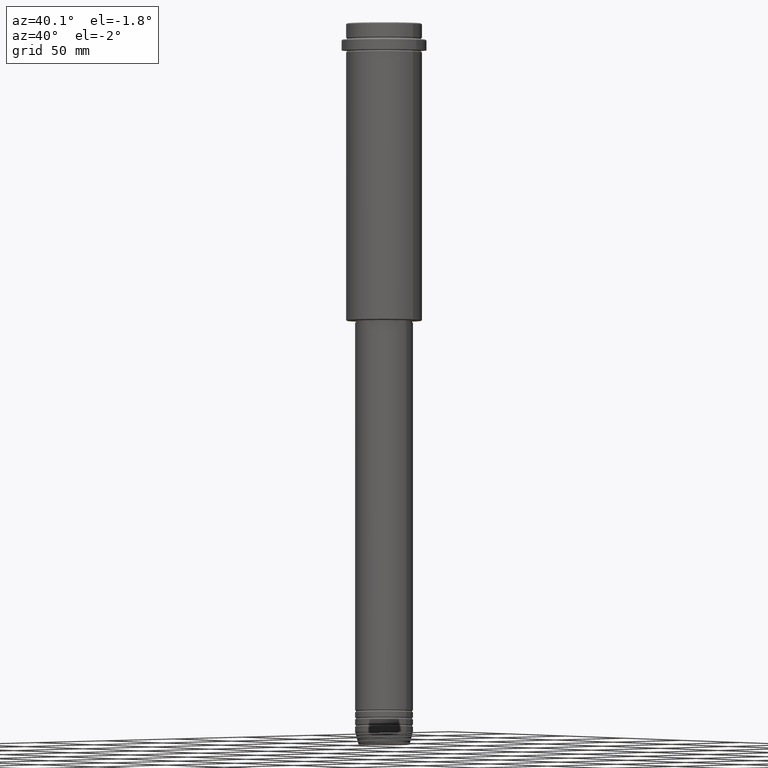
[diagram: clean part render]
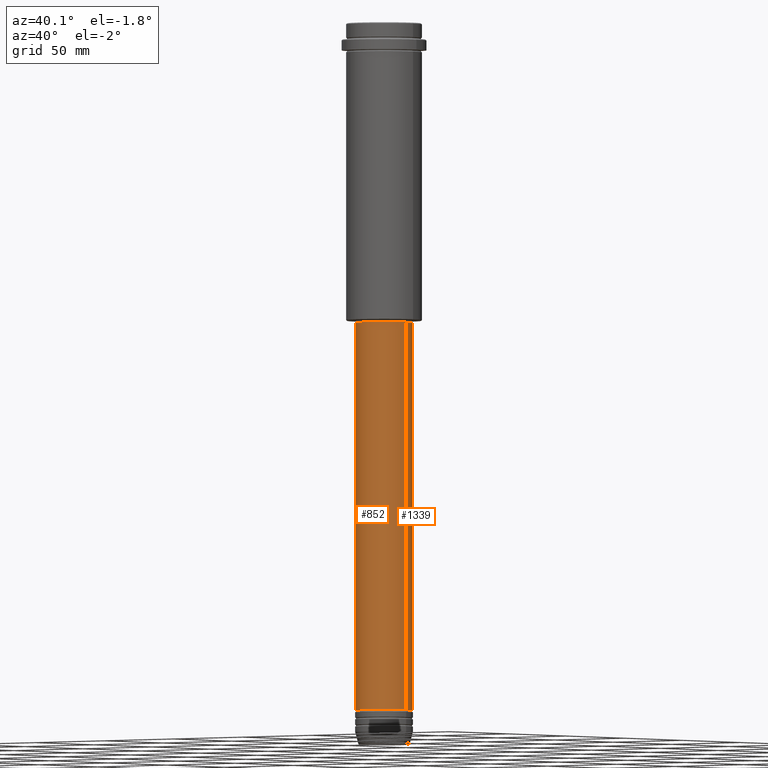
[diagram: same view with one multi-face feature highlighted, each face labeled with its STEP entity id]
A machine part, auxiliary view. The highlighted faces form ONE feature: a constant-radius fillet chain: 2 tangent blend faces with common blend radius 16 mm. The faces share edges in the B-rep.
Their STEP definitions:
[1] entity #1339 (Cylinder):
#47 = CARTESIAN_POINT ( 'NONE',  ( 16.00000000000000000, 0.000000000000000000, 0.000000000000000000 ) ) ;
#77 = CIRCLE ( 'NONE', #877, 16.00000000000000355 ) ;
#89 = DIRECTION ( 'NONE',  ( -0.000000000000000000, -0.000000000000000000, 1.000000000000000000 ) ) ;
#251 = VERTEX_POINT ( 'NONE', #1068 ) ;
#310 = LINE ( 'NONE', #403, #466 ) ;
#337 = ORIENTED_EDGE ( 'NONE', *, *, #456, .T. ) ;
#361 = CARTESIAN_POINT ( 'NONE',  ( 0.000000000000000000, 0.000000000000000000, -380.9999999999998295 ) ) ;
#403 = CARTESIAN_POINT ( 'NONE',  ( -16.00000000000000000, 1.959434878635765131E-15, 0.000000000000000000 ) ) ;
#431 = CARTESIAN_POINT ( 'NONE',  ( -16.00000000000000000, 1.959434878635765131E-15, -380.9999999999998295 ) ) ;
#456 = EDGE_CURVE ( 'NONE', #1061, #1329, #1062, .T. ) ;
#466 = VECTOR ( 'NONE', #1063, 1000.000000000000000 ) ;
#513 = ORIENTED_EDGE ( 'NONE', *, *, #1052, .T. ) ;
#548 = DIRECTION ( 'NONE',  ( -0.000000000000000000, -0.000000000000000000, 1.000000000000000000 ) ) ;
#627 = DIRECTION ( 'NONE',  ( 1.000000000000000000, 0.000000000000000000, 0.000000000000000000 ) ) ;
#698 = LINE ( 'NONE', #47, #1182 ) ;
#734 = CARTESIAN_POINT ( 'NONE',  ( 0.000000000000000000, 0.000000000000000000, -165.9999999999998863 ) ) ;
#761 = CYLINDRICAL_SURFACE ( 'NONE', #1047, 16.00000000000000000 ) ;
#762 = CARTESIAN_POINT ( 'NONE',  ( 16.00000000000000355, 0.000000000000000000, -165.9999999999998863 ) ) ;
#825 = DIRECTION ( 'NONE',  ( -0.000000000000000000, -0.000000000000000000, 1.000000000000000000 ) ) ;
#849 = VERTEX_POINT ( 'NONE', #762 ) ;
#861 = EDGE_LOOP ( 'NONE', ( #337, #513, #1020, #1272 ) ) ;
#873 = AXIS2_PLACEMENT_3D ( 'NONE', #361, #548, #1320 ) ;
#877 = AXIS2_PLACEMENT_3D ( 'NONE', #734, #89, #627 ) ;
#917 = DIRECTION ( 'NONE',  ( -0.000000000000000000, -0.000000000000000000, 1.000000000000000000 ) ) ;
#1005 = EDGE_CURVE ( 'NONE', #1061, #849, #698, .T. ) ;
#1020 = ORIENTED_EDGE ( 'NONE', *, *, #1038, .F. ) ;
#1038 = EDGE_CURVE ( 'NONE', #849, #251, #77, .T. ) ;
#1047 = AXIS2_PLACEMENT_3D ( 'NONE', #1203, #917, #1151 ) ;
#1052 = EDGE_CURVE ( 'NONE', #1329, #251, #310, .T. ) ;
#1061 = VERTEX_POINT ( 'NONE', #1405 ) ;
#1062 = CIRCLE ( 'NONE', #873, 16.00000000000000000 ) ;
#1063 = DIRECTION ( 'NONE',  ( -0.000000000000000000, -0.000000000000000000, 1.000000000000000000 ) ) ;
#1068 = CARTESIAN_POINT ( 'NONE',  ( -16.00000000000000355, 1.959434878635765526E-15, -165.9999999999998863 ) ) ;
#1151 = DIRECTION ( 'NONE',  ( 1.000000000000000000, 0.000000000000000000, 0.000000000000000000 ) ) ;
#1182 = VECTOR ( 'NONE', #825, 1000.000000000000000 ) ;
#1203 = CARTESIAN_POINT ( 'NONE',  ( 0.000000000000000000, 0.000000000000000000, 0.000000000000000000 ) ) ;
#1272 = ORIENTED_EDGE ( 'NONE', *, *, #1005, .F. ) ;
#1308 = FACE_OUTER_BOUND ( 'NONE', #861, .T. ) ;
#1320 = DIRECTION ( 'NONE',  ( 1.000000000000000000, 0.000000000000000000, 0.000000000000000000 ) ) ;
#1329 = VERTEX_POINT ( 'NONE', #431 ) ;
#1339 = ADVANCED_FACE ( 'NONE', ( #1308 ), #761, .T. ) ;
#1405 = CARTESIAN_POINT ( 'NONE',  ( 16.00000000000000000, 0.000000000000000000, -380.9999999999998295 ) ) ;
[2] entity #852 (Cylinder):
#47 = CARTESIAN_POINT ( 'NONE',  ( 16.00000000000000000, 0.000000000000000000, 0.000000000000000000 ) ) ;
#59 = CIRCLE ( 'NONE', #768, 16.00000000000000355 ) ;
#251 = VERTEX_POINT ( 'NONE', #1068 ) ;
#310 = LINE ( 'NONE', #403, #466 ) ;
#403 = CARTESIAN_POINT ( 'NONE',  ( -16.00000000000000000, 1.959434878635765131E-15, 0.000000000000000000 ) ) ;
#431 = CARTESIAN_POINT ( 'NONE',  ( -16.00000000000000000, 1.959434878635765131E-15, -380.9999999999998295 ) ) ;
#466 = VECTOR ( 'NONE', #1063, 1000.000000000000000 ) ;
#483 = DIRECTION ( 'NONE',  ( -0.000000000000000000, -0.000000000000000000, 1.000000000000000000 ) ) ;
#520 = ORIENTED_EDGE ( 'NONE', *, *, #1005, .T. ) ;
#589 = AXIS2_PLACEMENT_3D ( 'NONE', #600, #483, #988 ) ;
#600 = CARTESIAN_POINT ( 'NONE',  ( 0.000000000000000000, 0.000000000000000000, -380.9999999999998295 ) ) ;
#602 = CARTESIAN_POINT ( 'NONE',  ( 0.000000000000000000, 0.000000000000000000, 0.000000000000000000 ) ) ;
#660 = CYLINDRICAL_SURFACE ( 'NONE', #789, 16.00000000000000000 ) ;
#698 = LINE ( 'NONE', #47, #1182 ) ;
#762 = CARTESIAN_POINT ( 'NONE',  ( 16.00000000000000355, 0.000000000000000000, -165.9999999999998863 ) ) ;
#768 = AXIS2_PLACEMENT_3D ( 'NONE', #1343, #1145, #1127 ) ;
#788 = ORIENTED_EDGE ( 'NONE', *, *, #1371, .T. ) ;
#789 = AXIS2_PLACEMENT_3D ( 'NONE', #602, #800, #1256 ) ;
#800 = DIRECTION ( 'NONE',  ( -0.000000000000000000, -0.000000000000000000, 1.000000000000000000 ) ) ;
#825 = DIRECTION ( 'NONE',  ( -0.000000000000000000, -0.000000000000000000, 1.000000000000000000 ) ) ;
#849 = VERTEX_POINT ( 'NONE', #762 ) ;
#852 = ADVANCED_FACE ( 'NONE', ( #1205 ), #660, .T. ) ;
#940 = ORIENTED_EDGE ( 'NONE', *, *, #1052, .F. ) ;
#981 = EDGE_LOOP ( 'NONE', ( #940, #788, #520, #1051 ) ) ;
#988 = DIRECTION ( 'NONE',  ( 1.000000000000000000, 0.000000000000000000, 0.000000000000000000 ) ) ;
#1005 = EDGE_CURVE ( 'NONE', #1061, #849, #698, .T. ) ;
#1051 = ORIENTED_EDGE ( 'NONE', *, *, #1280, .F. ) ;
#1052 = EDGE_CURVE ( 'NONE', #1329, #251, #310, .T. ) ;
#1061 = VERTEX_POINT ( 'NONE', #1405 ) ;
#1063 = DIRECTION ( 'NONE',  ( -0.000000000000000000, -0.000000000000000000, 1.000000000000000000 ) ) ;
#1068 = CARTESIAN_POINT ( 'NONE',  ( -16.00000000000000355, 1.959434878635765526E-15, -165.9999999999998863 ) ) ;
#1127 = DIRECTION ( 'NONE',  ( 1.000000000000000000, 0.000000000000000000, 0.000000000000000000 ) ) ;
#1145 = DIRECTION ( 'NONE',  ( -0.000000000000000000, -0.000000000000000000, 1.000000000000000000 ) ) ;
#1182 = VECTOR ( 'NONE', #825, 1000.000000000000000 ) ;
#1186 = CIRCLE ( 'NONE', #589, 16.00000000000000000 ) ;
#1205 = FACE_OUTER_BOUND ( 'NONE', #981, .T. ) ;
#1256 = DIRECTION ( 'NONE',  ( 1.000000000000000000, 0.000000000000000000, 0.000000000000000000 ) ) ;
#1280 = EDGE_CURVE ( 'NONE', #251, #849, #59, .T. ) ;
#1329 = VERTEX_POINT ( 'NONE', #431 ) ;
#1343 = CARTESIAN_POINT ( 'NONE',  ( 0.000000000000000000, 0.000000000000000000, -165.9999999999998863 ) ) ;
#1371 = EDGE_CURVE ( 'NONE', #1329, #1061, #1186, .T. ) ;
#1405 = CARTESIAN_POINT ( 'NONE',  ( 16.00000000000000000, 0.000000000000000000, -380.9999999999998295 ) ) ;